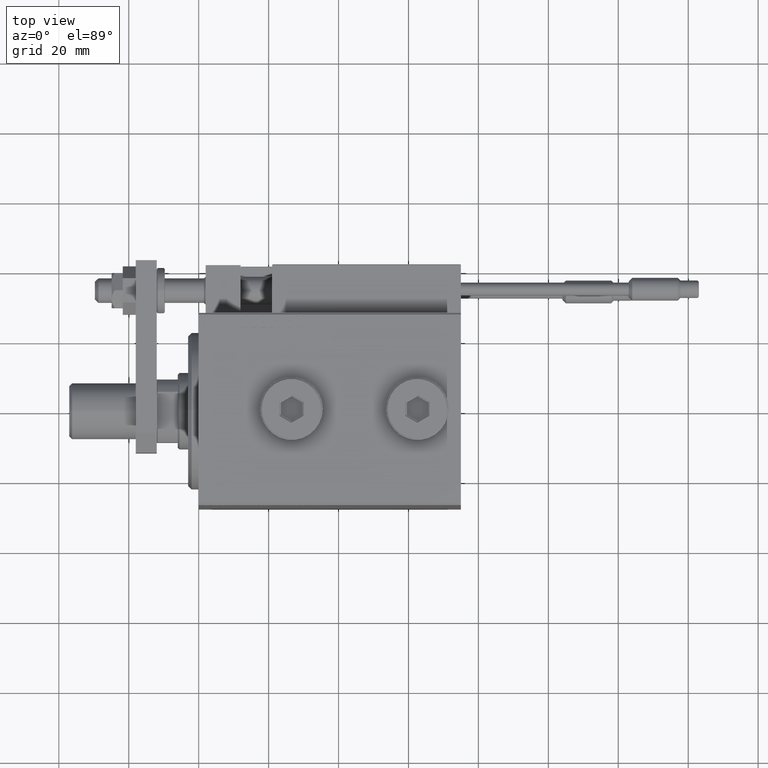
[diagram: clean part render]
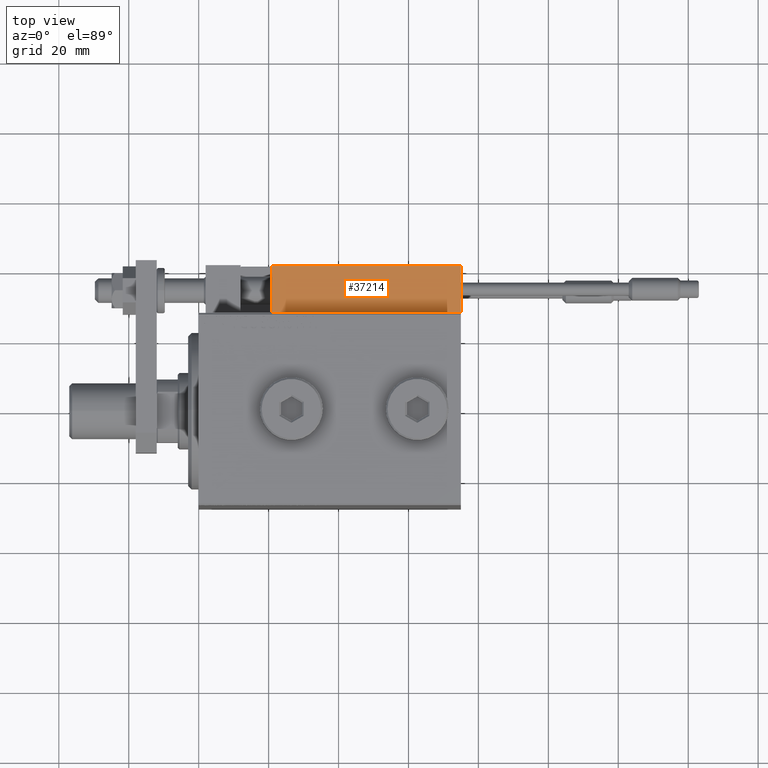
[diagram: same view with one face highlighted and labeled with its STEP entity id]
A machine part, top view. The second image highlights one B-rep face of the part: STEP entity #37214.
In plain terms, the highlighted planar face has unit normal (0, -0, -1).
Its self-contained STEP definition (entity closure, byte-faithful):
#80 = CARTESIAN_POINT ( 'NONE',  ( 27.00000000000006395, 20.00000000000001776, 14.00000000000000000 ) ) ;
#601 = EDGE_CURVE ( 'NONE', #35948, #9770, #10773, .T. ) ;
#1789 = DIRECTION ( 'NONE',  ( -6.424901762877063495E-17, -1.000000000000000000, 0.000000000000000000 ) ) ;
#3865 = LINE ( 'NONE', #13224, #31967 ) ;
#6369 = CARTESIAN_POINT ( 'NONE',  ( 27.00000000000006395, 20.00000000000001776, 14.00000000000000000 ) ) ;
#6778 = EDGE_CURVE ( 'NONE', #25211, #9770, #3865, .T. ) ;
#8413 = DIRECTION ( 'NONE',  ( -0.000000000000000000, -0.000000000000000000, -1.000000000000000000 ) ) ;
#8428 = EDGE_CURVE ( 'NONE', #30537, #35948, #20287, .T. ) ;
#9770 = VERTEX_POINT ( 'NONE', #22644 ) ;
#9824 = ORIENTED_EDGE ( 'NONE', *, *, #6778, .F. ) ;
#10773 = LINE ( 'NONE', #27215, #13380 ) ;
#11482 = EDGE_LOOP ( 'NONE', ( #9824, #13335, #46941, #16571 ) ) ;
#13224 = CARTESIAN_POINT ( 'NONE',  ( -26.99999999999993605, 20.00000000000002132, 14.00000000000000000 ) ) ;
#13335 = ORIENTED_EDGE ( 'NONE', *, *, #38881, .T. ) ;
#13380 = VECTOR ( 'NONE', #43628, 1000.000000000000000 ) ;
#15460 = CARTESIAN_POINT ( 'NONE',  ( -26.99999999999993605, 20.00000000000002132, 13.70000000000000107 ) ) ;
#16571 = ORIENTED_EDGE ( 'NONE', *, *, #601, .T. ) ;
#20287 = LINE ( 'NONE', #80, #28527 ) ;
#22273 = PLANE ( 'NONE',  #35515 ) ;
#22644 = CARTESIAN_POINT ( 'NONE',  ( -26.99999999999993605, 20.00000000000002132, 0.000000000000000000 ) ) ;
#23580 = CARTESIAN_POINT ( 'NONE',  ( 27.00000000000006395, 20.00000000000001776, 13.70000000000000107 ) ) ;
#25211 = VERTEX_POINT ( 'NONE', #15460 ) ;
#27215 = CARTESIAN_POINT ( 'NONE',  ( 27.00000000000006395, 20.00000000000001776, 0.000000000000000000 ) ) ;
#27950 = DIRECTION ( 'NONE',  ( 1.000000000000000000, -6.424901762877063495E-17, -0.000000000000000000 ) ) ;
#28527 = VECTOR ( 'NONE', #8413, 1000.000000000000000 ) ;
#30537 = VERTEX_POINT ( 'NONE', #23580 ) ;
#31182 = FACE_OUTER_BOUND ( 'NONE', #11482, .T. ) ;
#31967 = VECTOR ( 'NONE', #32197, 1000.000000000000000 ) ;
#32197 = DIRECTION ( 'NONE',  ( -0.000000000000000000, -0.000000000000000000, -1.000000000000000000 ) ) ;
#35515 = AXIS2_PLACEMENT_3D ( 'NONE', #6369, #1789, #43548 ) ;
#35948 = VERTEX_POINT ( 'NONE', #42896 ) ;
#37214 = ADVANCED_FACE ( 'NONE', ( #31182 ), #22273, .F. ) ;
#38881 = EDGE_CURVE ( 'NONE', #25211, #30537, #44887, .T. ) ;
#42401 = VECTOR ( 'NONE', #27950, 1000.000000000000000 ) ;
#42896 = CARTESIAN_POINT ( 'NONE',  ( 27.00000000000006395, 20.00000000000001776, 0.000000000000000000 ) ) ;
#43548 = DIRECTION ( 'NONE',  ( 1.000000000000000000, -6.424901762877063495E-17, 0.000000000000000000 ) ) ;
#43628 = DIRECTION ( 'NONE',  ( -1.000000000000000000, 6.424901762877062263E-17, 0.000000000000000000 ) ) ;
#44887 = LINE ( 'NONE', #52985, #42401 ) ;
#46941 = ORIENTED_EDGE ( 'NONE', *, *, #8428, .T. ) ;
#52985 = CARTESIAN_POINT ( 'NONE',  ( 27.00000000000006395, 20.00000000000001776, 13.70000000000000107 ) ) ;